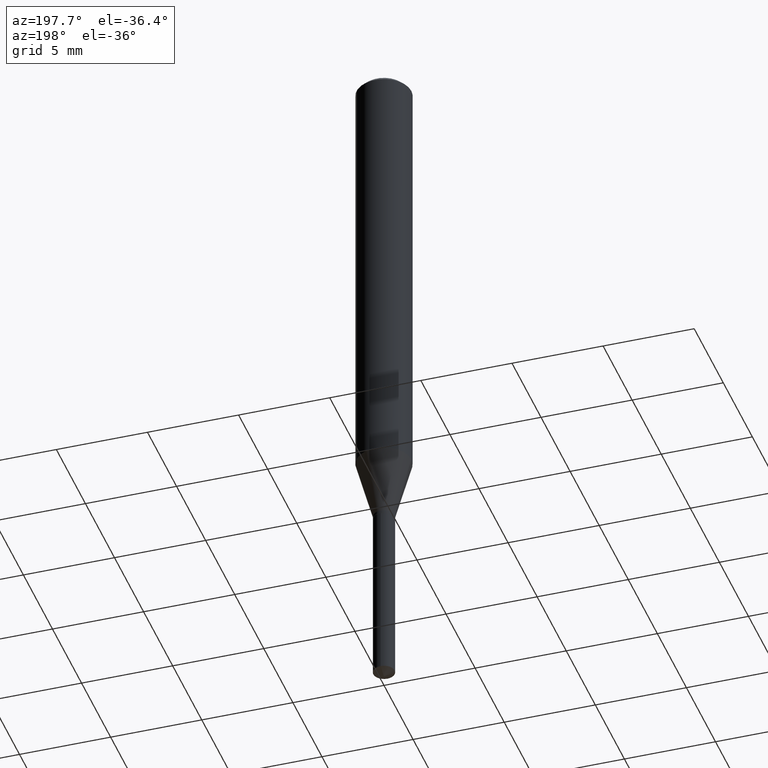
[diagram: clean part render]
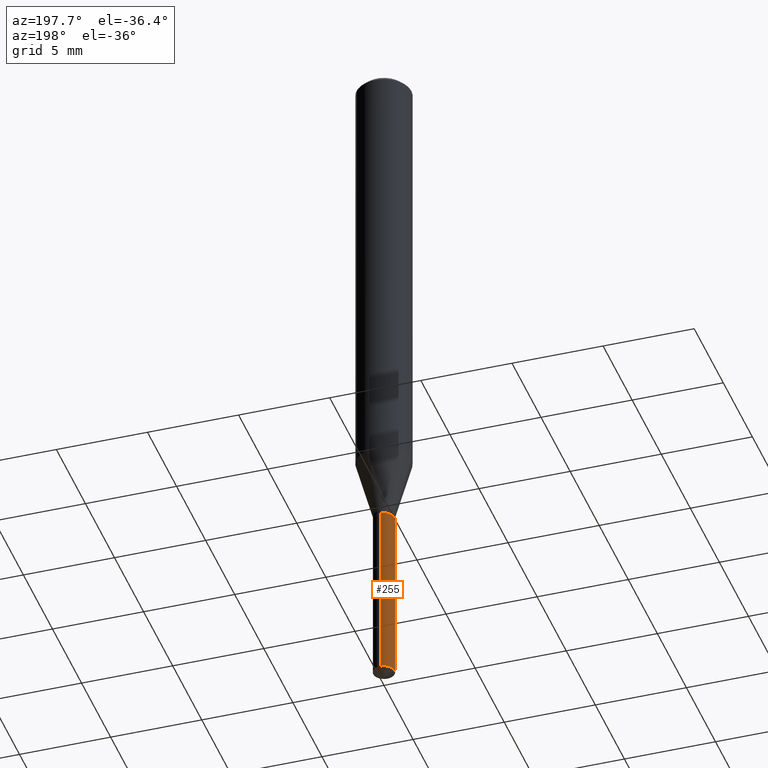
[diagram: same view with one face highlighted and labeled with its STEP entity id]
A machine part, auxiliary view. The second image highlights one B-rep face of the part: STEP entity #255.
In plain terms, the highlighted cylindrical surface (edge-blend (fillet) strip) has radius 0.5855 mm, axis along (-0, 0, 1).
Its self-contained STEP definition (entity closure, byte-faithful):
#21 = CIRCLE ( 'NONE', #141, 0.02305000000000000104 ) ;
#33 = CARTESIAN_POINT ( 'NONE',  ( 2.676565608369631794E-29, -3.821426325363822773E-15, -1.094499999999999806 ) ) ;
#55 = ORIENTED_EDGE ( 'NONE', *, *, #162, .T. ) ;
#60 = AXIS2_PLACEMENT_3D ( 'NONE', #414, #113, #378 ) ;
#67 = DIRECTION ( 'NONE',  ( -6.982962677686267499E-15, -1.000000000000000000, 0.000000000000000000 ) ) ;
#101 = CARTESIAN_POINT ( 'NONE',  ( 3.632381575223795657E-29, -5.186076634322272110E-15, -1.485351608479527075 ) ) ;
#113 = DIRECTION ( 'NONE',  ( -2.445470214571802116E-29, 3.491479321953280158E-15, 1.000000000000000000 ) ) ;
#114 = ORIENTED_EDGE ( 'NONE', *, *, #144, .T. ) ;
#124 = ORIENTED_EDGE ( 'NONE', *, *, #237, .F. ) ;
#129 = CARTESIAN_POINT ( 'NONE',  ( 1.637801005927298229E-16, 0.02304999999999618118, -1.094500000000000028 ) ) ;
#131 = LINE ( 'NONE', #129, #361 ) ;
#133 = EDGE_LOOP ( 'NONE', ( #165, #114, #55, #124 ) ) ;
#141 = AXIS2_PLACEMENT_3D ( 'NONE', #101, #252, #67 ) ;
#144 = EDGE_CURVE ( 'NONE', #169, #348, #21, .T. ) ;
#159 = VERTEX_POINT ( 'NONE', #345 ) ;
#162 = EDGE_CURVE ( 'NONE', #348, #172, #211, .T. ) ;
#165 = ORIENTED_EDGE ( 'NONE', *, *, #366, .F. ) ;
#169 = VERTEX_POINT ( 'NONE', #332 ) ;
#172 = VERTEX_POINT ( 'NONE', #270 ) ;
#185 = DIRECTION ( 'NONE',  ( -2.445470214571802116E-29, 3.491479321953280158E-15, 1.000000000000000000 ) ) ;
#211 = LINE ( 'NONE', #338, #423 ) ;
#237 = EDGE_CURVE ( 'NONE', #159, #172, #258, .T. ) ;
#252 = DIRECTION ( 'NONE',  ( -2.445470214571802116E-29, 3.491479321953280158E-15, 1.000000000000000000 ) ) ;
#255 = ADVANCED_FACE ( 'NONE', ( #456 ), #274, .T. ) ;
#258 = CIRCLE ( 'NONE', #448, 0.02305000000000000104 ) ;
#270 = CARTESIAN_POINT ( 'NONE',  ( -1.609572897206416996E-16, -0.02305000000000382437, -1.094499999999999806 ) ) ;
#274 = CYLINDRICAL_SURFACE ( 'NONE', #60, 0.02305000000000000104 ) ;
#320 = CARTESIAN_POINT ( 'NONE',  ( -1.609572897206320607E-16, -0.02305000000000518440, -1.485351608479527075 ) ) ;
#332 = CARTESIAN_POINT ( 'NONE',  ( 1.637801005927393879E-16, 0.02304999999999480728, -1.485351608479527075 ) ) ;
#338 = CARTESIAN_POINT ( 'NONE',  ( -1.609572897206416996E-16, -0.02305000000000382437, -1.094499999999999806 ) ) ;
#345 = CARTESIAN_POINT ( 'NONE',  ( 1.637801005927394372E-16, 0.02304999999999617771, -1.094500000000000028 ) ) ;
#348 = VERTEX_POINT ( 'NONE', #320 ) ;
#361 = VECTOR ( 'NONE', #432, 39.37007874015748143 ) ;
#366 = EDGE_CURVE ( 'NONE', #169, #159, #131, .T. ) ;
#378 = DIRECTION ( 'NONE',  ( -6.982962677686267499E-15, -1.000000000000000000, 5.925917556755451686E-15 ) ) ;
#414 = CARTESIAN_POINT ( 'NONE',  ( 2.676565608369631794E-29, -3.821426325363822773E-15, -1.094499999999999806 ) ) ;
#422 = DIRECTION ( 'NONE',  ( -2.445470214571802396E-29, 3.491479321953280158E-15, 1.000000000000000000 ) ) ;
#423 = VECTOR ( 'NONE', #422, 39.37007874015748143 ) ;
#432 = DIRECTION ( 'NONE',  ( -2.445470214571802396E-29, 3.491479321953280158E-15, 1.000000000000000000 ) ) ;
#448 = AXIS2_PLACEMENT_3D ( 'NONE', #33, #185, #485 ) ;
#456 = FACE_OUTER_BOUND ( 'NONE', #133, .T. ) ;
#485 = DIRECTION ( 'NONE',  ( -6.982962677686267499E-15, -1.000000000000000000, 5.925917556755451686E-15 ) ) ;